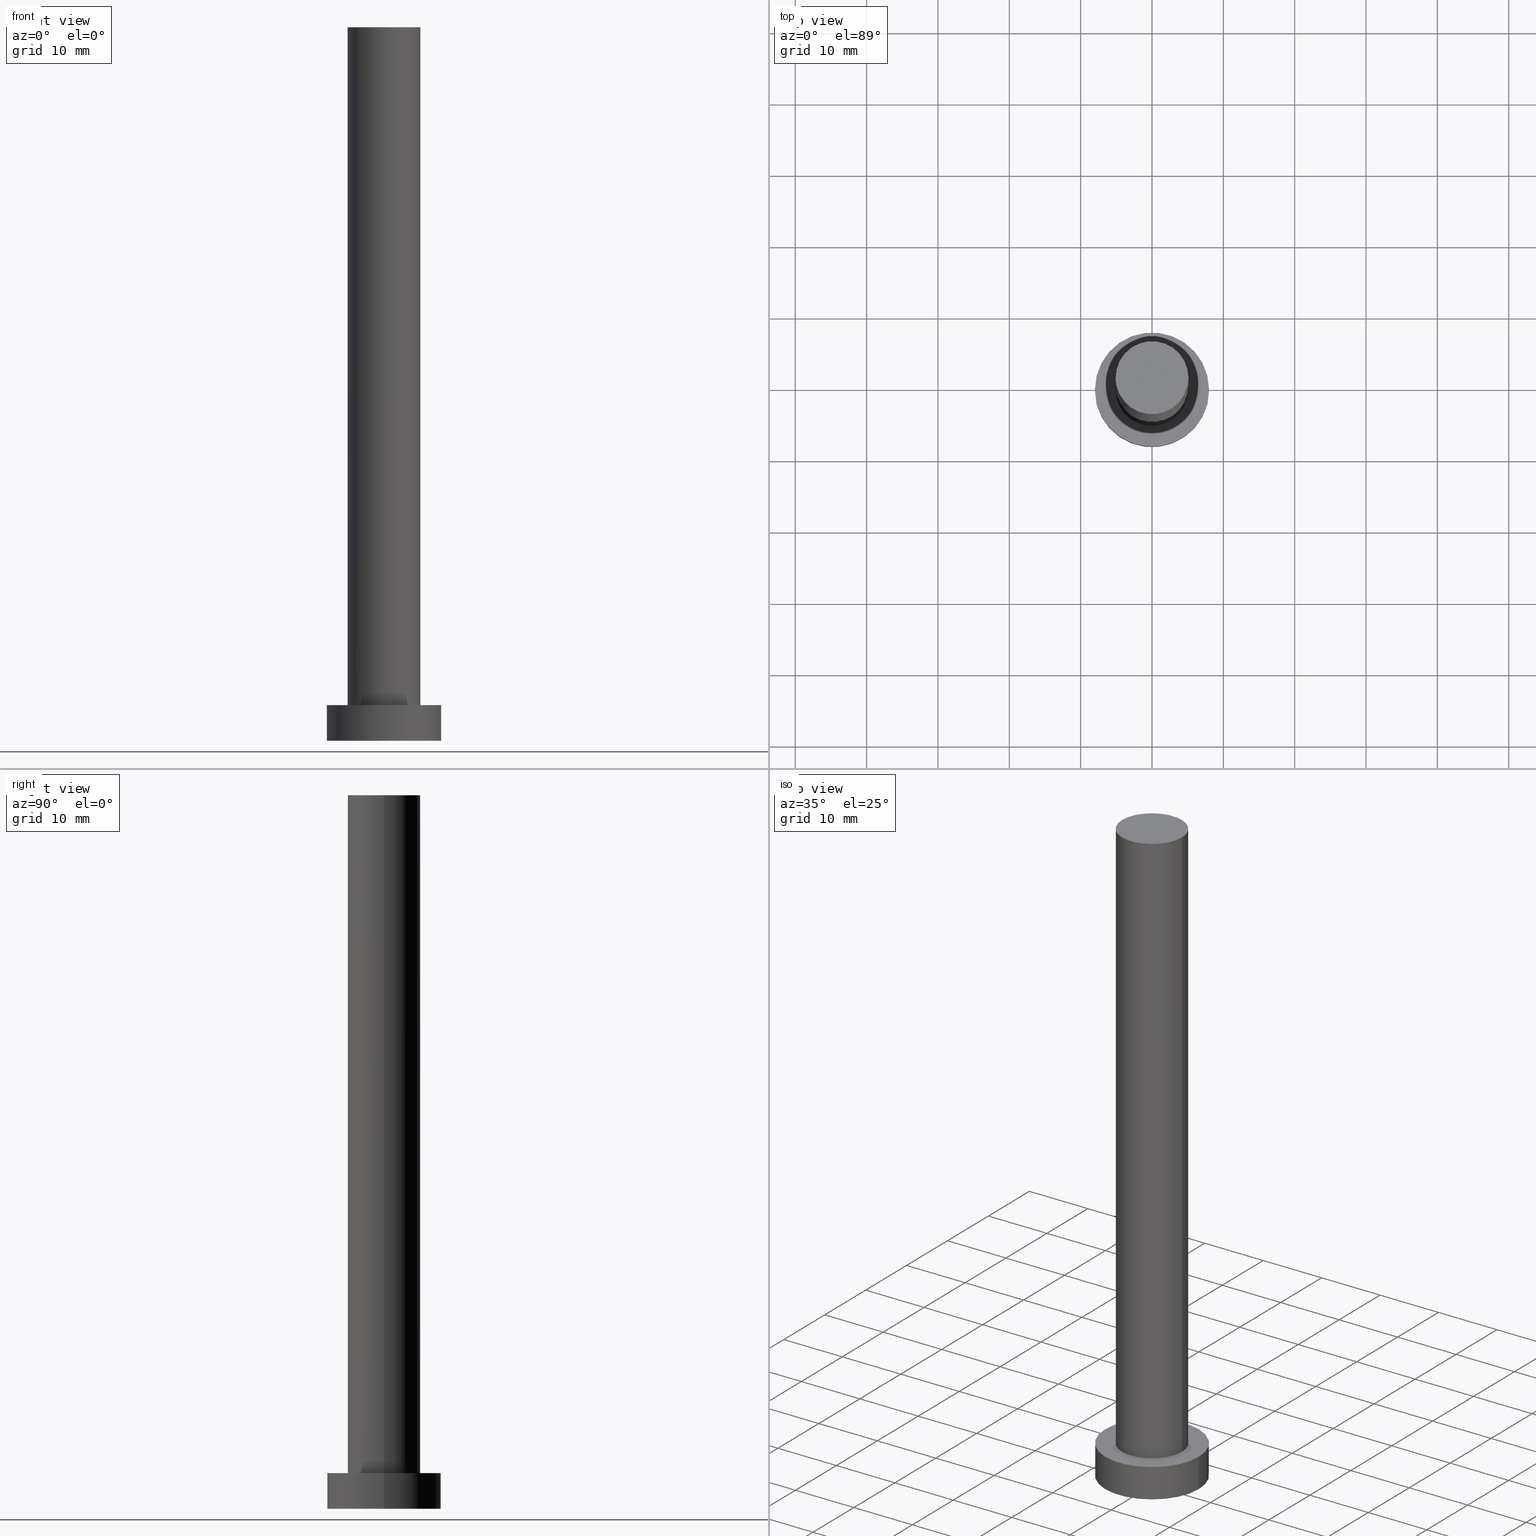
[diagram: canonical four-view strip — front | top / right | iso, engineering-drawing reading convention]
A machine part, canonical four-view strip (front | top / right | iso — engineering-drawing reading convention). The complete STEP part file that produces these views, byte-faithful:
ISO-10303-21;
HEADER;
FILE_DESCRIPTION (( 'STEP AP203' ),
    '1' );
FILE_NAME ('7ec0.STEP',
    '2023-02-12T10:59:47',
    ( '' ),
    ( '' ),
    'SwSTEP 2.0',
    'SolidWorks 2019',
    '' );
FILE_SCHEMA (( 'CONFIG_CONTROL_DESIGN' ));
ENDSEC;

DATA;
#1 = CC_DESIGN_PERSON_AND_ORGANIZATION_ASSIGNMENT ( #250, #244, ( #54 ) ) ;
#2 = DIRECTION ( 'NONE',  ( 0.000000000000000000, 0.000000000000000000, 1.000000000000000000 ) ) ;
#3 = VERTEX_POINT ( 'NONE', #41 ) ;
#4 = VECTOR ( 'NONE', #136, 1000.000000000000000 ) ;
#5 = ORIENTED_EDGE ( 'NONE', *, *, #106, .T. ) ;
#6 = VERTEX_POINT ( 'NONE', #222 ) ;
#7 = COORDINATED_UNIVERSAL_TIME_OFFSET ( 1, 0, .AHEAD. ) ;
#8 = ORIENTED_EDGE ( 'NONE', *, *, #139, .F. ) ;
#9 = SHAPE_DEFINITION_REPRESENTATION ( #163, #72 ) ;
#10 = CC_DESIGN_DATE_AND_TIME_ASSIGNMENT ( #81, #182, ( #54 ) ) ;
#11 = DIRECTION ( 'NONE',  ( -1.000000000000000000, 0.000000000000000000, 0.000000000000000000 ) ) ;
#12 = ADVANCED_FACE ( 'NONE', ( #243 ), #73, .F. ) ;
#13 = DIRECTION ( 'NONE',  ( -0.000000000000000000, -0.000000000000000000, -1.000000000000000000 ) ) ;
#14 = APPROVAL_ROLE ( '' ) ;
#15 = EDGE_LOOP ( 'NONE', ( #239, #169, #47, #91 ) ) ;
#16 = COORDINATED_UNIVERSAL_TIME_OFFSET ( 1, 0, .AHEAD. ) ;
#17 = APPROVAL_ROLE ( '' ) ;
#18 = AXIS2_PLACEMENT_3D ( 'NONE', #133, #57, #88 ) ;
#19 = CC_DESIGN_APPROVAL ( #218, ( #116 ) ) ;
#20 = ORIENTED_EDGE ( 'NONE', *, *, #229, .F. ) ;
#21 = CYLINDRICAL_SURFACE ( 'NONE', #199, 8.000000000000000000 ) ;
#22 = DIRECTION ( 'NONE',  ( 0.000000000000000000, 0.000000000000000000, 1.000000000000000000 ) ) ;
#23 = DIRECTION ( 'NONE',  ( -1.000000000000000000, 0.000000000000000000, 0.000000000000000000 ) ) ;
#24 = CIRCLE ( 'NONE', #188, 5.099999999999999645 ) ;
#25 = APPROVAL_PERSON_ORGANIZATION ( #33, #46, #31 ) ;
#26 = DATE_AND_TIME ( #28, #60 ) ;
#27 = CIRCLE ( 'NONE', #97, 8.000000000000000000 ) ;
#28 = CALENDAR_DATE ( 2023, 12, 2 ) ;
#29 = CC_DESIGN_PERSON_AND_ORGANIZATION_ASSIGNMENT ( #168, #147, ( #116 ) ) ;
#30 = VERTEX_POINT ( 'NONE', #45 ) ;
#31 = APPROVAL_ROLE ( '' ) ;
#32 = ORIENTED_EDGE ( 'NONE', *, *, #183, .F. ) ;
#33 = PERSON_AND_ORGANIZATION ( #63, #152 ) ;
#34 = CARTESIAN_POINT ( 'NONE',  ( 0.000000000000000000, 0.000000000000000000, 0.000000000000000000 ) ) ;
#35 = COORDINATED_UNIVERSAL_TIME_OFFSET ( 1, 0, .AHEAD. ) ;
#36 = FACE_OUTER_BOUND ( 'NONE', #193, .T. ) ;
#37 = CALENDAR_DATE ( 2023, 12, 2 ) ;
#38 = EDGE_CURVE ( 'NONE', #124, #114, #48, .T. ) ;
#39 = DIRECTION ( 'NONE',  ( 1.000000000000000000, 0.000000000000000000, -0.000000000000000000 ) ) ;
#40 = ADVANCED_FACE ( 'NONE', ( #109 ), #194, .T. ) ;
#41 = CARTESIAN_POINT ( 'NONE',  ( -5.099999999999999645, 0.000000000000000000, 5.000000000000000000 ) ) ;
#42 = AXIS2_PLACEMENT_3D ( 'NONE', #76, #203, #11 ) ;
#43 = CC_DESIGN_APPROVAL ( #160, ( #54 ) ) ;
#44 = VERTEX_POINT ( 'NONE', #100 ) ;
#45 = CARTESIAN_POINT ( 'NONE',  ( 5.099999999999999645, 6.245698675651500839E-16, 5.000000000000000000 ) ) ;
#46 = APPROVAL ( #232, 'NEUR�EN�' ) ;
#47 = ORIENTED_EDGE ( 'NONE', *, *, #38, .T. ) ;
#48 = LINE ( 'NONE', #196, #151 ) ;
#49 = MECHANICAL_CONTEXT ( 'NONE', #227, 'mechanical' ) ;
#50 = CARTESIAN_POINT ( 'NONE',  ( 0.000000000000000000, 0.000000000000000000, 100.0000000000000000 ) ) ;
#51 = DIRECTION ( 'NONE',  ( 0.000000000000000000, 0.000000000000000000, 1.000000000000000000 ) ) ;
#52 = CALENDAR_DATE ( 2023, 12, 2 ) ;
#53 = LOCAL_TIME ( 11, 59, 47.00000000000000000, #170 ) ;
#54 = SECURITY_CLASSIFICATION ( '', '', #166 ) ;
#55 = CC_DESIGN_PERSON_AND_ORGANIZATION_ASSIGNMENT ( #56, #209, ( #116 ) ) ;
#56 = PERSON_AND_ORGANIZATION ( #63, #152 ) ;
#57 = DIRECTION ( 'NONE',  ( 0.000000000000000000, 0.000000000000000000, 1.000000000000000000 ) ) ;
#58 = CALENDAR_DATE ( 2023, 12, 2 ) ;
#59 =( LENGTH_UNIT ( ) NAMED_UNIT ( * ) SI_UNIT ( .MILLI., .METRE. ) );
#60 = LOCAL_TIME ( 11, 59, 47.00000000000000000, #7 ) ;
#61 = DIRECTION ( 'NONE',  ( -0.000000000000000000, -0.000000000000000000, -1.000000000000000000 ) ) ;
#62 = APPLICATION_PROTOCOL_DEFINITION ( 'international standard', 'config_control_design', 1994, #176 ) ;
#63 = PERSON ( 'NEUR�EN�', 'NEUR�EN�', 'NEUR�EN�', ('NEUR�EN�'), ('NEUR�EN�'), ('NEUR�EN�') ) ;
#64 = LINE ( 'NONE', #187, #4 ) ;
#65 = DIRECTION ( 'NONE',  ( 1.000000000000000000, 0.000000000000000000, 0.000000000000000000 ) ) ;
#66 = DIRECTION ( 'NONE',  ( 1.000000000000000000, 0.000000000000000000, 0.000000000000000000 ) ) ;
#67 = ORIENTED_EDGE ( 'NONE', *, *, #155, .T. ) ;
#68 = ORIENTED_EDGE ( 'NONE', *, *, #90, .T. ) ;
#69 = AXIS2_PLACEMENT_3D ( 'NONE', #234, #61, #89 ) ;
#70 = PRODUCT_DEFINITION ( 'NEZN�M�', '', #116, #99 ) ;
#71 = APPLICATION_PROTOCOL_DEFINITION ( 'international standard', 'config_control_design', 1994, #227 ) ;
#72 = ADVANCED_BREP_SHAPE_REPRESENTATION ( '7ec0', ( #205, #208 ), #184 ) ;
#73 = PLANE ( 'NONE',  #167 ) ;
#74 = AXIS2_PLACEMENT_3D ( 'NONE', #228, #235, #86 ) ;
#75 = APPROVAL_PERSON_ORGANIZATION ( #230, #160, #17 ) ;
#76 = CARTESIAN_POINT ( 'NONE',  ( 0.000000000000000000, 0.000000000000000000, 100.0000000000000000 ) ) ;
#77 = FACE_OUTER_BOUND ( 'NONE', #94, .T. ) ;
#78 = APPROVAL_DATE_TIME ( #26, #160 ) ;
#79 = DATE_AND_TIME ( #37, #142 ) ;
#80 = ORIENTED_EDGE ( 'NONE', *, *, #236, .T. ) ;
#81 = DATE_AND_TIME ( #52, #123 ) ;
#82 = AXIS2_PLACEMENT_3D ( 'NONE', #172, #255, #186 ) ;
#83 = CC_DESIGN_PERSON_AND_ORGANIZATION_ASSIGNMENT ( #202, #153, ( #129 ) ) ;
#84 = DIRECTION ( 'NONE',  ( 0.000000000000000000, 0.000000000000000000, 1.000000000000000000 ) ) ;
#85 = CIRCLE ( 'NONE', #249, 8.000000000000000000 ) ;
#86 = DIRECTION ( 'NONE',  ( 1.000000000000000000, 0.000000000000000000, -0.000000000000000000 ) ) ;
#87 = CARTESIAN_POINT ( 'NONE',  ( 0.000000000000000000, 0.000000000000000000, 5.000000000000000000 ) ) ;
#88 = DIRECTION ( 'NONE',  ( 1.000000000000000000, 0.000000000000000000, 0.000000000000000000 ) ) ;
#89 = DIRECTION ( 'NONE',  ( -1.000000000000000000, 0.000000000000000000, 0.000000000000000000 ) ) ;
#90 = EDGE_CURVE ( 'NONE', #44, #125, #165, .T. ) ;
#91 = ORIENTED_EDGE ( 'NONE', *, *, #204, .T. ) ;
#92 = ORIENTED_EDGE ( 'NONE', *, *, #140, .F. ) ;
#93 = ADVANCED_FACE ( 'NONE', ( #143 ), #164, .T. ) ;
#94 = EDGE_LOOP ( 'NONE', ( #251, #5 ) ) ;
#95 = CC_DESIGN_APPROVAL ( #46, ( #70 ) ) ;
#96 = DIRECTION ( 'NONE',  ( 0.000000000000000000, 0.000000000000000000, 1.000000000000000000 ) ) ;
#97 = AXIS2_PLACEMENT_3D ( 'NONE', #185, #175, #65 ) ;
#98 = PERSON_AND_ORGANIZATION_ROLE ( 'creator' ) ;
#99 = DESIGN_CONTEXT ( 'detailed design', #176, 'design' ) ;
#100 = CARTESIAN_POINT ( 'NONE',  ( 8.000000000000000000, 9.797174393178825657E-16, 5.000000000000000000 ) ) ;
#101 = CIRCLE ( 'NONE', #126, 8.000000000000000000 ) ;
#102 = APPROVAL_STATUS ( 'not_yet_approved' ) ;
#103 = CARTESIAN_POINT ( 'NONE',  ( 0.000000000000000000, 0.000000000000000000, 5.000000000000000000 ) ) ;
#104 = CARTESIAN_POINT ( 'NONE',  ( 5.099999999999999645, 6.245698675651500839E-16, 100.0000000000000000 ) ) ;
#105 = CC_DESIGN_PERSON_AND_ORGANIZATION_ASSIGNMENT ( #213, #98, ( #70 ) ) ;
#106 = EDGE_CURVE ( 'NONE', #197, #6, #24, .T. ) ;
#107 = VECTOR ( 'NONE', #214, 1000.000000000000000 ) ;
#108 = EDGE_LOOP ( 'NONE', ( #223, #8 ) ) ;
#109 = FACE_OUTER_BOUND ( 'NONE', #180, .T. ) ;
#110 = DIRECTION ( 'NONE',  ( -1.000000000000000000, 0.000000000000000000, 0.000000000000000000 ) ) ;
#111 = DATE_AND_TIME ( #58, #53 ) ;
#112 = ADVANCED_FACE ( 'NONE', ( #77 ), #144, .T. ) ;
#113 = COORDINATED_UNIVERSAL_TIME_OFFSET ( 1, 0, .AHEAD. ) ;
#114 = VERTEX_POINT ( 'NONE', #253 ) ;
#115 = AXIS2_PLACEMENT_3D ( 'NONE', #158, #84, #66 ) ;
#116 = PRODUCT_DEFINITION_FORMATION_WITH_SPECIFIED_SOURCE ( 'LIBOVOLN�', '', #129, .NOT_KNOWN. ) ;
#117 = FACE_OUTER_BOUND ( 'NONE', #173, .T. ) ;
#118 = FACE_OUTER_BOUND ( 'NONE', #138, .T. ) ;
#119 = ORIENTED_EDGE ( 'NONE', *, *, #204, .F. ) ;
#120 = CARTESIAN_POINT ( 'NONE',  ( 8.000000000000000000, 9.797174393178825657E-16, 0.000000000000000000 ) ) ;
#121 =( NAMED_UNIT ( * ) SI_UNIT ( $, .STERADIAN. ) SOLID_ANGLE_UNIT ( ) );
#122 = DIRECTION ( 'NONE',  ( 0.000000000000000000, 0.000000000000000000, 1.000000000000000000 ) ) ;
#123 = LOCAL_TIME ( 11, 59, 47.00000000000000000, #35 ) ;
#124 = VERTEX_POINT ( 'NONE', #211 ) ;
#125 = VERTEX_POINT ( 'NONE', #120 ) ;
#126 = AXIS2_PLACEMENT_3D ( 'NONE', #154, #22, #149 ) ;
#127 = VECTOR ( 'NONE', #130, 1000.000000000000000 ) ;
#128 = PRODUCT_RELATED_PRODUCT_CATEGORY ( 'detail', '', ( #129 ) ) ;
#129 = PRODUCT ( '7ec0', '7ec0', '', ( #49 ) ) ;
#130 = DIRECTION ( 'NONE',  ( -0.000000000000000000, -0.000000000000000000, -1.000000000000000000 ) ) ;
#131 = ORIENTED_EDGE ( 'NONE', *, *, #236, .F. ) ;
#132 = EDGE_LOOP ( 'NONE', ( #119, #131 ) ) ;
#133 = CARTESIAN_POINT ( 'NONE',  ( 0.000000000000000000, 0.000000000000000000, 100.0000000000000000 ) ) ;
#134 = AXIS2_PLACEMENT_3D ( 'NONE', #215, #2, #39 ) ;
#135 = PLANE ( 'NONE',  #134 ) ;
#136 = DIRECTION ( 'NONE',  ( -0.000000000000000000, -0.000000000000000000, -1.000000000000000000 ) ) ;
#137 = CYLINDRICAL_SURFACE ( 'NONE', #69, 5.099999999999999645 ) ;
#138 = EDGE_LOOP ( 'NONE', ( #92, #20, #67, #162 ) ) ;
#139 = EDGE_CURVE ( 'NONE', #30, #3, #210, .T. ) ;
#140 = EDGE_CURVE ( 'NONE', #197, #30, #190, .T. ) ;
#141 = CARTESIAN_POINT ( 'NONE',  ( 0.000000000000000000, 0.000000000000000000, 0.000000000000000000 ) ) ;
#142 = LOCAL_TIME ( 11, 59, 47.00000000000000000, #113 ) ;
#143 = FACE_OUTER_BOUND ( 'NONE', #15, .T. ) ;
#144 = PLANE ( 'NONE',  #74 ) ;
#145 = ORIENTED_EDGE ( 'NONE', *, *, #245, .T. ) ;
#146 = DATE_AND_TIME ( #248, #189 ) ;
#147 = PERSON_AND_ORGANIZATION_ROLE ( 'creator' ) ;
#148 = DATE_TIME_ROLE ( 'creation_date' ) ;
#149 = DIRECTION ( 'NONE',  ( 1.000000000000000000, 0.000000000000000000, 0.000000000000000000 ) ) ;
#150 = CARTESIAN_POINT ( 'NONE',  ( 5.099999999999999645, 6.245698675651500839E-16, 100.0000000000000000 ) ) ;
#151 = VECTOR ( 'NONE', #201, 1000.000000000000000 ) ;
#152 = ORGANIZATION ( 'NEUR�EN�', 'NEUR�EN�', '' ) ;
#153 = PERSON_AND_ORGANIZATION_ROLE ( 'design_owner' ) ;
#154 = CARTESIAN_POINT ( 'NONE',  ( 0.000000000000000000, 0.000000000000000000, 5.000000000000000000 ) ) ;
#155 = EDGE_CURVE ( 'NONE', #6, #3, #64, .T. ) ;
#156 = DIRECTION ( 'NONE',  ( 1.000000000000000000, 0.000000000000000000, 0.000000000000000000 ) ) ;
#157 = DIRECTION ( 'NONE',  ( 1.000000000000000000, 0.000000000000000000, 0.000000000000000000 ) ) ;
#158 = CARTESIAN_POINT ( 'NONE',  ( 0.000000000000000000, 0.000000000000000000, 5.000000000000000000 ) ) ;
#159 = DIRECTION ( 'NONE',  ( 0.000000000000000000, 0.000000000000000000, 1.000000000000000000 ) ) ;
#160 = APPROVAL ( #102, 'NEUR�EN�' ) ;
#161 = ORIENTED_EDGE ( 'NONE', *, *, #183, .T. ) ;
#162 = ORIENTED_EDGE ( 'NONE', *, *, #252, .T. ) ;
#163 = PRODUCT_DEFINITION_SHAPE ( 'NONE', 'NONE',  #70 ) ;
#164 = CYLINDRICAL_SURFACE ( 'NONE', #240, 8.000000000000000000 ) ;
#165 = LINE ( 'NONE', #206, #127 ) ;
#166 = SECURITY_CLASSIFICATION_LEVEL ( 'unclassified' ) ;
#167 = AXIS2_PLACEMENT_3D ( 'NONE', #141, #159, #224 ) ;
#168 = PERSON_AND_ORGANIZATION ( #63, #152 ) ;
#169 = ORIENTED_EDGE ( 'NONE', *, *, #245, .F. ) ;
#170 = COORDINATED_UNIVERSAL_TIME_OFFSET ( 1, 0, .AHEAD. ) ;
#171 = DIRECTION ( 'NONE',  ( -0.000000000000000000, -0.000000000000000000, -1.000000000000000000 ) ) ;
#172 = CARTESIAN_POINT ( 'NONE',  ( 0.000000000000000000, 0.000000000000000000, 0.000000000000000000 ) ) ;
#173 = EDGE_LOOP ( 'NONE', ( #32, #68, #80, #217 ) ) ;
#174 = UNCERTAINTY_MEASURE_WITH_UNIT (LENGTH_MEASURE( 1.000000000000000082E-05 ), #59, 'distance_accuracy_value', 'NONE');
#175 = DIRECTION ( 'NONE',  ( 0.000000000000000000, 0.000000000000000000, 1.000000000000000000 ) ) ;
#176 = APPLICATION_CONTEXT ( 'configuration controlled 3d designs of mechanical parts and assemblies' ) ;
#177 = ORIENTED_EDGE ( 'NONE', *, *, #140, .T. ) ;
#178 = ADVANCED_FACE ( 'NONE', ( #191, #36 ), #135, .T. ) ;
#179 = ORIENTED_EDGE ( 'NONE', *, *, #106, .F. ) ;
#180 = EDGE_LOOP ( 'NONE', ( #179, #177, #242, #212 ) ) ;
#181 = APPROVAL_DATE_TIME ( #79, #218 ) ;
#182 = DATE_TIME_ROLE ( 'classification_date' ) ;
#183 = EDGE_CURVE ( 'NONE', #44, #124, #27, .T. ) ;
#184 =( GEOMETRIC_REPRESENTATION_CONTEXT ( 3 ) GLOBAL_UNCERTAINTY_ASSIGNED_CONTEXT ( ( #174 ) ) GLOBAL_UNIT_ASSIGNED_CONTEXT ( ( #59, #254, #121 ) ) REPRESENTATION_CONTEXT ( 'NONE', 'WORKASPACE' ) );
#185 = CARTESIAN_POINT ( 'NONE',  ( 0.000000000000000000, 0.000000000000000000, 5.000000000000000000 ) ) ;
#186 = DIRECTION ( 'NONE',  ( 1.000000000000000000, 0.000000000000000000, 0.000000000000000000 ) ) ;
#187 = CARTESIAN_POINT ( 'NONE',  ( -5.099999999999999645, 0.000000000000000000, 100.0000000000000000 ) ) ;
#188 = AXIS2_PLACEMENT_3D ( 'NONE', #50, #51, #207 ) ;
#189 = LOCAL_TIME ( 11, 59, 47.00000000000000000, #16 ) ;
#190 = LINE ( 'NONE', #150, #107 ) ;
#191 = FACE_BOUND ( 'NONE', #108, .T. ) ;
#192 = CC_DESIGN_DATE_AND_TIME_ASSIGNMENT ( #146, #148, ( #70 ) ) ;
#193 = EDGE_LOOP ( 'NONE', ( #145, #161 ) ) ;
#194 = CYLINDRICAL_SURFACE ( 'NONE', #42, 5.099999999999999645 ) ;
#195 = ADVANCED_FACE ( 'NONE', ( #118 ), #137, .T. ) ;
#196 = CARTESIAN_POINT ( 'NONE',  ( -8.000000000000000000, 0.000000000000000000, 5.000000000000000000 ) ) ;
#197 = VERTEX_POINT ( 'NONE', #104 ) ;
#198 = CARTESIAN_POINT ( 'NONE',  ( 0.000000000000000000, 0.000000000000000000, 0.000000000000000000 ) ) ;
#199 = AXIS2_PLACEMENT_3D ( 'NONE', #103, #171, #23 ) ;
#200 = CLOSED_SHELL ( 'NONE', ( #40, #237, #93, #178, #12, #195, #112 ) ) ;
#201 = DIRECTION ( 'NONE',  ( -0.000000000000000000, -0.000000000000000000, -1.000000000000000000 ) ) ;
#202 = PERSON_AND_ORGANIZATION ( #63, #152 ) ;
#203 = DIRECTION ( 'NONE',  ( -0.000000000000000000, -0.000000000000000000, -1.000000000000000000 ) ) ;
#204 = EDGE_CURVE ( 'NONE', #114, #125, #247, .T. ) ;
#205 = MANIFOLD_SOLID_BREP ( 'P�idat vysunut�m3', #200 ) ;
#206 = CARTESIAN_POINT ( 'NONE',  ( 8.000000000000000000, 9.797174393178825657E-16, 5.000000000000000000 ) ) ;
#207 = DIRECTION ( 'NONE',  ( 1.000000000000000000, 0.000000000000000000, 0.000000000000000000 ) ) ;
#208 = AXIS2_PLACEMENT_3D ( 'NONE', #198, #96, #241 ) ;
#209 = PERSON_AND_ORGANIZATION_ROLE ( 'design_supplier' ) ;
#210 = CIRCLE ( 'NONE', #115, 5.099999999999999645 ) ;
#211 = CARTESIAN_POINT ( 'NONE',  ( -8.000000000000000000, 0.000000000000000000, 5.000000000000000000 ) ) ;
#212 = ORIENTED_EDGE ( 'NONE', *, *, #155, .F. ) ;
#213 = PERSON_AND_ORGANIZATION ( #63, #152 ) ;
#214 = DIRECTION ( 'NONE',  ( -0.000000000000000000, -0.000000000000000000, -1.000000000000000000 ) ) ;
#215 = CARTESIAN_POINT ( 'NONE',  ( 0.000000000000000000, 0.000000000000000000, 5.000000000000000000 ) ) ;
#216 = CIRCLE ( 'NONE', #18, 5.099999999999999645 ) ;
#217 = ORIENTED_EDGE ( 'NONE', *, *, #38, .F. ) ;
#218 = APPROVAL ( #246, 'NEUR�EN�' ) ;
#219 = PERSON_AND_ORGANIZATION ( #63, #152 ) ;
#220 = CIRCLE ( 'NONE', #238, 5.099999999999999645 ) ;
#221 = APPROVAL_PERSON_ORGANIZATION ( #219, #218, #14 ) ;
#222 = CARTESIAN_POINT ( 'NONE',  ( -5.099999999999999645, 0.000000000000000000, 100.0000000000000000 ) ) ;
#223 = ORIENTED_EDGE ( 'NONE', *, *, #252, .F. ) ;
#224 = DIRECTION ( 'NONE',  ( 1.000000000000000000, 0.000000000000000000, -0.000000000000000000 ) ) ;
#225 = CC_DESIGN_SECURITY_CLASSIFICATION ( #54, ( #116 ) ) ;
#226 = CARTESIAN_POINT ( 'NONE',  ( 0.000000000000000000, 0.000000000000000000, 5.000000000000000000 ) ) ;
#227 = APPLICATION_CONTEXT ( 'configuration controlled 3d designs of mechanical parts and assemblies' ) ;
#228 = CARTESIAN_POINT ( 'NONE',  ( 0.000000000000000000, 0.000000000000000000, 100.0000000000000000 ) ) ;
#229 = EDGE_CURVE ( 'NONE', #6, #197, #216, .T. ) ;
#230 = PERSON_AND_ORGANIZATION ( #63, #152 ) ;
#231 = APPROVAL_DATE_TIME ( #111, #46 ) ;
#232 = APPROVAL_STATUS ( 'not_yet_approved' ) ;
#233 = DIRECTION ( 'NONE',  ( 0.000000000000000000, 0.000000000000000000, 1.000000000000000000 ) ) ;
#234 = CARTESIAN_POINT ( 'NONE',  ( 0.000000000000000000, 0.000000000000000000, 100.0000000000000000 ) ) ;
#235 = DIRECTION ( 'NONE',  ( 0.000000000000000000, 0.000000000000000000, 1.000000000000000000 ) ) ;
#236 = EDGE_CURVE ( 'NONE', #125, #114, #85, .T. ) ;
#237 = ADVANCED_FACE ( 'NONE', ( #117 ), #21, .T. ) ;
#238 = AXIS2_PLACEMENT_3D ( 'NONE', #87, #233, #156 ) ;
#239 = ORIENTED_EDGE ( 'NONE', *, *, #90, .F. ) ;
#240 = AXIS2_PLACEMENT_3D ( 'NONE', #226, #13, #110 ) ;
#241 = DIRECTION ( 'NONE',  ( 1.000000000000000000, 0.000000000000000000, 0.000000000000000000 ) ) ;
#242 = ORIENTED_EDGE ( 'NONE', *, *, #139, .T. ) ;
#243 = FACE_OUTER_BOUND ( 'NONE', #132, .T. ) ;
#244 = PERSON_AND_ORGANIZATION_ROLE ( 'classification_officer' ) ;
#245 = EDGE_CURVE ( 'NONE', #124, #44, #101, .T. ) ;
#246 = APPROVAL_STATUS ( 'not_yet_approved' ) ;
#247 = CIRCLE ( 'NONE', #82, 8.000000000000000000 ) ;
#248 = CALENDAR_DATE ( 2023, 12, 2 ) ;
#249 = AXIS2_PLACEMENT_3D ( 'NONE', #34, #122, #157 ) ;
#250 = PERSON_AND_ORGANIZATION ( #63, #152 ) ;
#251 = ORIENTED_EDGE ( 'NONE', *, *, #229, .T. ) ;
#252 = EDGE_CURVE ( 'NONE', #3, #30, #220, .T. ) ;
#253 = CARTESIAN_POINT ( 'NONE',  ( -8.000000000000000000, 0.000000000000000000, 0.000000000000000000 ) ) ;
#254 =( NAMED_UNIT ( * ) PLANE_ANGLE_UNIT ( ) SI_UNIT ( $, .RADIAN. ) );
#255 = DIRECTION ( 'NONE',  ( 0.000000000000000000, 0.000000000000000000, 1.000000000000000000 ) ) ;
ENDSEC;
END-ISO-10303-21;
